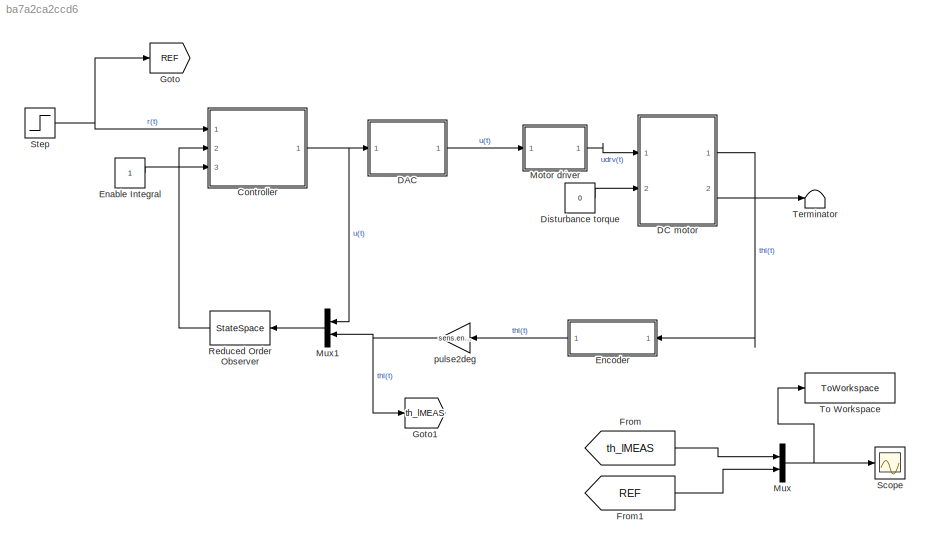
MODEL slx_ba7a2ca2ccd6
KIND model
CONFIG AbsTol = auto
CONFIG EnableMultiTasking = off
CONFIG FixedStep = auto
CONFIG MaxStep = auto
CONFIG MinStep = auto
CONFIG RelTol = 1e-3
CONFIG SampleTimeConstraint = Unconstrained
CONFIG SolverName = ode45
CONFIG StartTime = 0.0
CONFIG StopTime = 2
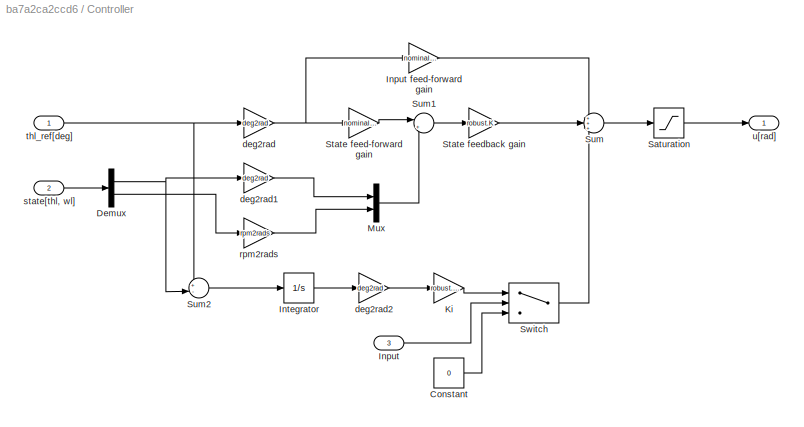
BLOCK [SubSystem] Controller
  Ports = [3, 1]
  RequestExecContextInheritance = off
BLOCK [Constant] Controller/Constant
  Value = 0
BLOCK [Demux] Controller/Demux
  Outputs = 2
  Ports = [1, 2]
BLOCK [Inport] Controller/Input
  Port = 3
BLOCK [Gain] Controller/Input feed-forward gain
  Gain = nominal.N_u
BLOCK [Integrator] Controller/Integrator
  Ports = [1, 1]
BLOCK [Gain] Controller/Ki
  Gain = robust.Ki
BLOCK [Mux] Controller/Mux
  DisplayOption = bar
  Inputs = 2
  Ports = [2, 1]
BLOCK [Saturate] Controller/Saturation
  LowerLimit = daq.dac.vss
  UpperLimit = daq.dac.vdd
BLOCK [Gain] Controller/State feed-forward gain
  Gain = nominal.N_x
BLOCK [Gain] Controller/State feedback gain
  Gain = robust.K
  Multiplication = Matrix(K*u)
BLOCK [Sum] Controller/Sum
  Inputs = +++
  Ports = [3, 1]
BLOCK [Sum] Controller/Sum1
  Inputs = |+-
  Ports = [2, 1]
BLOCK [Sum] Controller/Sum2
  Inputs = +-|
  Ports = [2, 1]
BLOCK [Switch] Controller/Switch
  Criteria = u2 > Threshold
  InputSameDT = off
  SaturateOnIntegerOverflow = off
BLOCK [Gain] Controller/deg2rad
  Gain = deg2rad
BLOCK [Gain] Controller/deg2rad1
  Gain = deg2rad
BLOCK [Gain] Controller/deg2rad2
  Gain = deg2rad
BLOCK [Gain] Controller/rpm2rads
  Gain = rpm2rads
BLOCK [Inport] Controller/state[thl, wl]
  Port = 2
BLOCK [Inport] Controller/thl_ref[deg]
BLOCK [Outport] Controller/u[rad]
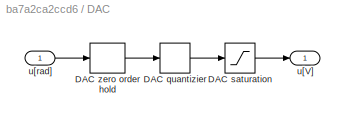
BLOCK [SubSystem] DAC
  Ports = [1, 1]
  RequestExecContextInheritance = off
BLOCK [Quantizer] DAC/DAC quantizier
  QuantizationInterval = daq.dac.q
BLOCK [Saturate] DAC/DAC saturation
  LowerLimit = -10
  UpperLimit = 10
BLOCK [ZeroOrderHold] DAC/DAC zero order hold
  SampleTime = sens.enc.T_s
BLOCK [Outport] DAC/u[V]
BLOCK [Inport] DAC/u[rad]
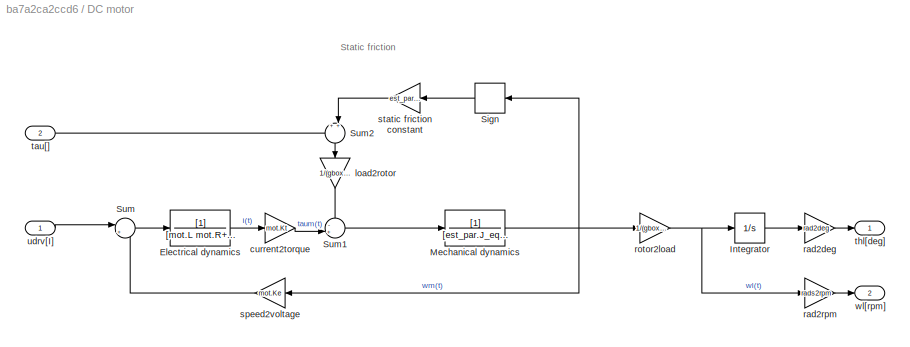
BLOCK [SubSystem] DC motor
  Ports = [2, 2]
  RequestExecContextInheritance = off
BLOCK [TransferFcn] DC motor/Electrical dynamics
  Denominator = [mot.L mot.R+sens.curr.Rs]
BLOCK [Integrator] DC motor/Integrator
  Ports = [1, 1]
BLOCK [TransferFcn] DC motor/Mechanical dynamics
  Denominator = [est_par.J_eq est_par.B_eq]
BLOCK [Signum] DC motor/Sign
  ZeroCross = off
BLOCK [Sum] DC motor/Sum
  Inputs = |+-
  Ports = [2, 1]
BLOCK [Sum] DC motor/Sum1
  Inputs = -+|
  Ports = [2, 1]
BLOCK [Sum] DC motor/Sum2
  Inputs = ++|
  NameLocation = left
  Ports = [2, 1]
BLOCK [Gain] DC motor/current2torque
  Gain = mot.Kt
BLOCK [Gain] DC motor/load2rotor
  Gain = 1/(gbox.N)
  NameLocation = left
BLOCK [Gain] DC motor/rad2deg
  Gain = rad2deg
BLOCK [Gain] DC motor/rad2rpm
  Gain = rads2rpm
BLOCK [Gain] DC motor/rotor2load
  Gain = 1/(gbox.N)
BLOCK [Gain] DC motor/speed2voltage
  Gain = mot.Ke
BLOCK [Gain] DC motor/static friction constant
  Gain = est_par.tau_sf
BLOCK [Inport] DC motor/tau[]
  Port = 2
  Unit = V
BLOCK [Outport] DC motor/thl[deg]
  Unit = deg
BLOCK [Inport] DC motor/udrv[I]
  Unit = V
BLOCK [Outport] DC motor/wl[rpm]
  Port = 2
  Unit = rpm
BLOCK [Constant] Disturbance torque
  Value = 0
BLOCK [Constant] Enable Integral
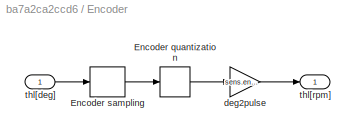
BLOCK [SubSystem] Encoder
  Ports = [1, 1]
  RequestExecContextInheritance = off
BLOCK [Quantizer] Encoder/Encoder quantization
  QuantizationInterval = sens.enc.q
BLOCK [ZeroOrderHold] Encoder/Encoder sampling
  SampleTime = sens.enc.T_s
BLOCK [Gain] Encoder/deg2pulse
  Gain = sens.enc.deg2pulse
BLOCK [Inport] Encoder/thl[deg]
BLOCK [Outport] Encoder/thl[rpm]
BLOCK [From] From
  GotoTag = th_lMEAS
BLOCK [From] From1
  GotoTag = REF
BLOCK [Goto] Goto
  GotoTag = REF
BLOCK [Goto] Goto1
  GotoTag = th_lMEAS
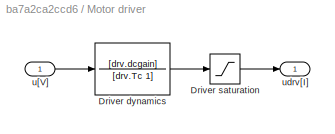
BLOCK [SubSystem] Motor driver
  Ports = [1, 1]
  RequestExecContextInheritance = off
BLOCK [TransferFcn] Motor driver/Driver dynamics
  Denominator = [drv.Tc 1]
  Numerator = [drv.dcgain]
BLOCK [Saturate] Motor driver/Driver saturation
  LowerLimit = -12
  UpperLimit = 12
BLOCK [Inport] Motor driver/u[V]
BLOCK [Outport] Motor driver/udrv[I]
BLOCK [Mux] Mux
  DisplayOption = bar
  Inputs = 2
  Ports = [2, 1]
BLOCK [Mux] Mux1
  DisplayOption = bar
  Inputs = 2
  NameLocation = top
  Ports = [2, 1]
BLOCK [StateSpace] Reduced Order Observer
  A = reduced.A0
  B = reduced.B0
  C = reduced.C0
  D = reduced.D0
  InitialCondition = 0
  NameLocation = top
  Ports = [1, 1]
BLOCK [Scope] Scope
  Floating = off
  NumInputPorts = 1
  Ports = [1]
  ScopeSpecificationString = Simulink.scopes.TimeScopeBlockCfg('CurrentConfiguration', extmgr.ConfigurationSet(extmgr.Configuration('Core','General UI',true),extmgr.Configuration('Core','Source UI',true),extmgr.Configuration('Sources','WiredSimulink',true),extmgr.Configuration('Visuals','Time Domain',true,'SerializedDisplays',{struct('MinYLimReal','-7.00928','MaxYLimReal','63.0835','YLabelReal','','MinYLimMag','0.00000','MaxY...<+1779ch>
BLOCK [Step] Step
  After = 120
  SampleTime = 0
  Time = 0
BLOCK [Terminator] Terminator
BLOCK [ToWorkspace] To Workspace
  FixptAsFi = on
  MaxDataPoints = inf
  Ports = [1]
  SampleTime = -1
  SaveFormat = Structure With Time
  VariableName = simres
BLOCK [Gain] pulse2deg
  Gain = sens.enc.pulse2deg
ANNOTATION DC motor: Static friction
LINE Controller/Constant:1 -> Controller/Switch:3
NET Controller/Demux:1 -> Controller/Sum2:2, Controller/deg2rad1:1
LINE Controller/Demux:2 -> Controller/rpm2rads:1
LINE Controller/Input feed-forward gain:1 -> Controller/Sum:1
LINE Controller/Input:1 -> Controller/Switch:2
LINE Controller/Integrator:1 -> Controller/deg2rad2:1
LINE Controller/Ki:1 -> Controller/Switch:1
LINE Controller/Mux:1 -> Controller/Sum1:2
LINE Controller/Saturation:1 -> Controller/u[rad]:1
LINE Controller/State feed-forward gain:1 -> Controller/Sum1:1
LINE Controller/State feedback gain:1 -> Controller/Sum:2
LINE Controller/Sum1:1 -> Controller/State feedback gain:1
LINE Controller/Sum2:1 -> Controller/Integrator:1
LINE Controller/Sum:1 -> Controller/Saturation:1
LINE Controller/Switch:1 -> Controller/Sum:3
LINE Controller/deg2rad1:1 -> Controller/Mux:1
LINE Controller/deg2rad2:1 -> Controller/Ki:1
NET Controller/deg2rad:1 -> Controller/Input feed-forward gain:1, Controller/State feed-forward gain:1
LINE Controller/rpm2rads:1 -> Controller/Mux:2
LINE Controller/state[thl, wl]:1 -> Controller/Demux:1
NET Controller/thl_ref[deg]:1 -> Controller/Sum2:1, Controller/deg2rad:1
NET Controller:1 -> DAC:1, Mux1:1
LINE DAC/DAC quantizier:1 -> DAC/DAC saturation:1
LINE DAC/DAC saturation:1 -> DAC/u[V]:1
LINE DAC/DAC zero order hold:1 -> DAC/DAC quantizier:1
LINE DAC/u[rad]:1 -> DAC/DAC zero order hold:1
LINE DAC:1 -> Motor driver:1
LINE DC motor/Electrical dynamics:1 -> DC motor/current2torque:1
LINE DC motor/Integrator:1 -> DC motor/rad2deg:1
NET DC motor/Mechanical dynamics:1 -> DC motor/Sign:1, DC motor/rotor2load:1, DC motor/speed2voltage:1
LINE DC motor/Sign:1 -> DC motor/static friction constant:1
LINE DC motor/Sum1:1 -> DC motor/Mechanical dynamics:1
LINE DC motor/Sum2:1 -> DC motor/load2rotor:1
LINE DC motor/Sum:1 -> DC motor/Electrical dynamics:1
LINE DC motor/current2torque:1 -> DC motor/Sum1:2
LINE DC motor/load2rotor:1 -> DC motor/Sum1:1
LINE DC motor/rad2deg:1 -> DC motor/thl[deg]:1
LINE DC motor/rad2rpm:1 -> DC motor/wl[rpm]:1
NET DC motor/rotor2load:1 -> DC motor/Integrator:1, DC motor/rad2rpm:1
LINE DC motor/speed2voltage:1 -> DC motor/Sum:2
LINE DC motor/static friction constant:1 -> DC motor/Sum2:2
LINE DC motor/tau[]:1 -> DC motor/Sum2:1
LINE DC motor/udrv[I]:1 -> DC motor/Sum:1
LINE DC motor:1 -> Encoder:1
LINE DC motor:2 -> Terminator:1
LINE Disturbance torque:1 -> DC motor:2
LINE Enable Integral:1 -> Controller:3
LINE Encoder/Encoder quantization:1 -> Encoder/deg2pulse:1
LINE Encoder/Encoder sampling:1 -> Encoder/Encoder quantization:1
LINE Encoder/deg2pulse:1 -> Encoder/thl[rpm]:1
LINE Encoder/thl[deg]:1 -> Encoder/Encoder sampling:1
LINE Encoder:1 -> pulse2deg:1
LINE From1:1 -> Mux:2
LINE From:1 -> Mux:1
LINE Motor driver/Driver dynamics:1 -> Motor driver/Driver saturation:1
LINE Motor driver/Driver saturation:1 -> Motor driver/udrv[I]:1
LINE Motor driver/u[V]:1 -> Motor driver/Driver dynamics:1
LINE Motor driver:1 -> DC motor:1
LINE Mux1:1 -> Reduced Order Observer:1
NET Mux:1 -> Scope:1, To Workspace:1
LINE Reduced Order Observer:1 -> Controller:2
NET Step:1 -> Controller:1, Goto:1
NET pulse2deg:1 -> Goto1:1, Mux1:2
note: NET lines group one-source signal fan-out (src -> all destinations, sorted); 1:1 wires keep LINE
